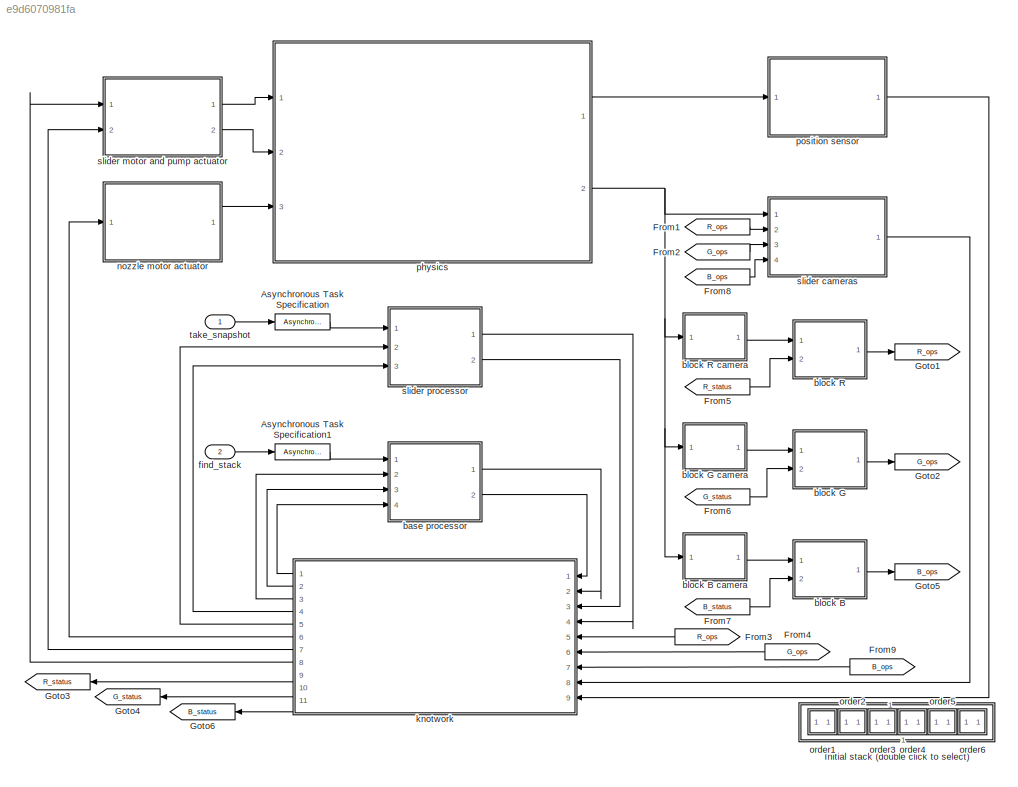
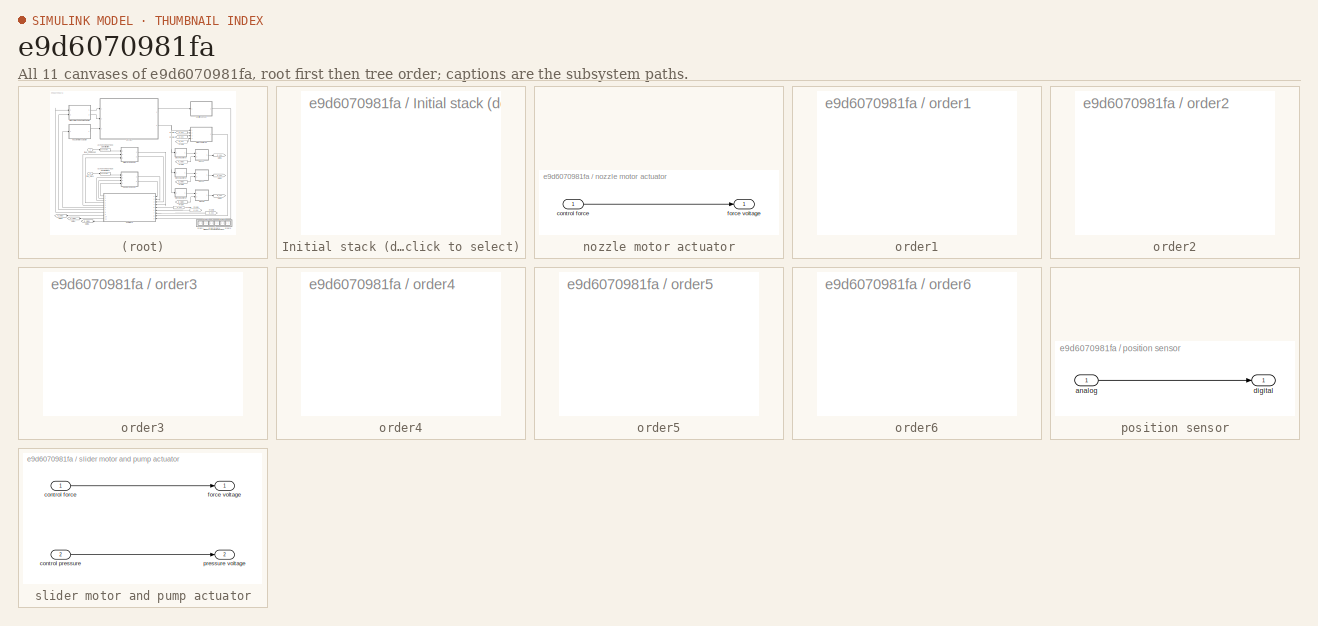
[diagram: thumbnail index - all 11 canvases of the model, root first then tree order]
MODEL slx_e9d6070981fa
KIND model
WORKSPACE source: MAT-file member
WORKSPACE ini_G_block_hpos = -0.4
BLOCK [AsynchronousTaskSpecification] Asynchronous Task Specification
  TaskPriority = 5
BLOCK [AsynchronousTaskSpecification] Asynchronous Task Specification1
BLOCK [From] From1
  GotoTag = R_ops
BLOCK [From] From2
  GotoTag = G_ops
BLOCK [From] From3
  GotoTag = R_ops
BLOCK [From] From4
  GotoTag = G_ops
BLOCK [From] From5
  GotoTag = R_status
BLOCK [From] From6
  GotoTag = G_status
BLOCK [From] From7
  GotoTag = B_status
BLOCK [From] From8
  GotoTag = B_ops
BLOCK [From] From9
  GotoTag = B_ops
BLOCK [Goto] Goto1
  GotoTag = R_ops
BLOCK [Goto] Goto2
  GotoTag = G_ops
BLOCK [Goto] Goto3
  GotoTag = R_status
BLOCK [Goto] Goto4
  GotoTag = G_status
BLOCK [Goto] Goto5
  GotoTag = B_ops
BLOCK [Goto] Goto6
  GotoTag = B_status
BLOCK [SubSystem] Initial stack (double click to select)
  FunctionWithSeparateData = off
  MaskHideContents = off
  MinAlgLoopOccurrences = off
  Opaque = off
  Ports = []
  PropExecContextOutsideSubsystem = off
  RTWSystemCode = Auto
  RequestExecContextInheritance = off
BLOCK [ModelReference] base processor
  CopyOfModelName = cps_base_processor_v2
  DefaultDataLogging = on
  ModelNameDialog = cps_base_processor_v2
  ModelReferenceVersion = 1.921
  ParameterArgumentNames = board_vpos,block_height
  ParameterArgumentValues = board_vpos, block_height
  Ports = [4, 2]
BLOCK [ModelReference] block B
  CopyOfModelName = cps_blocks_v2
  DefaultDataLogging = on
  ModelNameDialog = cps_blocks_v2
  ModelReferenceVersion = 1.769
  ParameterArgumentNames = block
  ParameterArgumentValues = blockB
  Ports = [2, 1]
BLOCK [ModelReference] block B camera
  CopyOfModelName = cps_blockB_camera_v2
  DefaultDataLogging = on
  ModelNameDialog = cps_blockB_camera_v2
  ModelReferenceVersion = 1.638
  ParameterArgumentNames = ini_G_block_vpos,ini_B_block_vpos,block_height
  ParameterArgumentValues = ini_G_block_vpos,ini_R_block_vpos,block_height
  Ports = [1, 1]
BLOCK [ModelReference] block G
  CopyOfModelName = cps_blocks_v2
  DefaultDataLogging = on
  ModelNameDialog = cps_blocks_v2
  ModelReferenceVersion = 1.769
  ParameterArgumentNames = block
  ParameterArgumentValues = blockG
  Ports = [2, 1]
BLOCK [ModelReference] block G camera
  CopyOfModelName = cps_blockG_camera_v2
  DefaultDataLogging = on
  ModelNameDialog = cps_blockG_camera_v2
  ModelReferenceVersion = 1.621
  ParameterArgumentNames = ini_G_block_vpos,ini_B_block_vpos,block_height
  ParameterArgumentValues = ini_G_block_vpos,ini_R_block_vpos,block_height
  Ports = [1, 1]
BLOCK [ModelReference] block R
  CopyOfModelName = cps_blocks_v2
  DefaultDataLogging = on
  ModelNameDialog = cps_blocks_v2
  ModelReferenceVersion = 1.769
  ParameterArgumentNames = block
  ParameterArgumentValues = blockR
  Ports = [2, 1]
BLOCK [ModelReference] block R camera
  CopyOfModelName = cps_blockR_camera_v2
  DefaultDataLogging = on
  ModelNameDialog = cps_blockR_camera_v2
  ModelReferenceVersion = 1.630
  ParameterArgumentNames = ini_G_block_vpos,ini_B_block_vpos,block_height
  ParameterArgumentValues = ini_G_block_vpos,ini_R_block_vpos,block_height
  Ports = [1, 1]
BLOCK [Inport] find_stack
  IconDisplay = Port number
  OutputFunctionCall = on
  Port = 2
BLOCK [ModelReference] knotwork
  CopyOfModelName = cps_network_v2
  DefaultDataLogging = on
  ModelNameDialog = cps_network_v2
  ModelReferenceVersion = 1.126
  Ports = [9, 11]
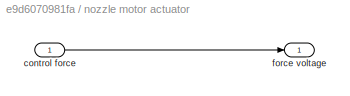
BLOCK [SubSystem] nozzle motor actuator
  FunctionWithSeparateData = off
  MaskHideContents = off
  MinAlgLoopOccurrences = off
  Opaque = off
  Ports = [1, 1]
  PropExecContextOutsideSubsystem = off
  RTWSystemCode = Auto
  RequestExecContextInheritance = off
BLOCK [Inport] nozzle motor actuator/control force
  IconDisplay = Port number
BLOCK [Outport] nozzle motor actuator/force voltage
  IconDisplay = Port number
BLOCK [SubSystem] order1
  FunctionWithSeparateData = off
  MaskHideContents = off
  MinAlgLoopOccurrences = off
  Opaque = off
  OpenFcn = temp = get_param(bdroot, 'modelworkspace');    \ntemp.evalin('ini_B_block_vpos = vpos_top;');   \ntemp.evalin('ini_G_block_vpos = vpos_middle;');\ntemp.evalin('ini_R_block_vpos = vpos_bottom;');\n                                               \ntemp.evalin(order_callback);                   \n                                               \nclear temp;
  Ports = []
  PropExecContextOutsideSubsystem = off
  RTWSystemCode = Auto
  RequestExecContextInheritance = off
BLOCK [SubSystem] order2
  FunctionWithSeparateData = off
  MaskHideContents = off
  MinAlgLoopOccurrences = off
  Opaque = off
  OpenFcn = temp = get_param(bdroot, 'modelworkspace');    \ntemp.evalin('ini_G_block_vpos = vpos_top;');   \ntemp.evalin('ini_B_block_vpos = vpos_middle;');\ntemp.evalin('ini_R_block_vpos = vpos_bottom;');\n                                               \ntemp.evalin(order_callback);                   \n                                               \nclear temp;
  Ports = []
  PropExecContextOutsideSubsystem = off
  RTWSystemCode = Auto
  RequestExecContextInheritance = off
BLOCK [SubSystem] order3
  FunctionWithSeparateData = off
  MaskHideContents = off
  MinAlgLoopOccurrences = off
  Opaque = off
  OpenFcn = temp = get_param(bdroot, 'modelworkspace');    \ntemp.evalin('ini_G_block_vpos = vpos_top;');   \ntemp.evalin('ini_R_block_vpos = vpos_middle;');\ntemp.evalin('ini_B_block_vpos = vpos_bottom;');\n                                               \ntemp.evalin(order_callback);                   \n                                               \nclear temp;
  Ports = []
  PropExecContextOutsideSubsystem = off
  RTWSystemCode = Auto
  RequestExecContextInheritance = off
BLOCK [SubSystem] order4
  FunctionWithSeparateData = off
  MaskHideContents = off
  MinAlgLoopOccurrences = off
  Opaque = off
  OpenFcn = temp = get_param(bdroot, 'modelworkspace');    \ntemp.evalin('ini_B_block_vpos = vpos_top;');   \ntemp.evalin('ini_R_block_vpos = vpos_middle;');\ntemp.evalin('ini_G_block_vpos = vpos_bottom;');\n                                               \ntemp.evalin(order_callback);                   \n                                               \nclear temp;
  Ports = []
  PropExecContextOutsideSubsystem = off
  RTWSystemCode = Auto
  RequestExecContextInheritance = off
BLOCK [SubSystem] order5
  FunctionWithSeparateData = off
  MaskHideContents = off
  MinAlgLoopOccurrences = off
  Opaque = off
  OpenFcn = temp = get_param(bdroot, 'modelworkspace');    \ntemp.evalin('ini_R_block_vpos = vpos_top;');   \ntemp.evalin('ini_B_block_vpos = vpos_middle;');\ntemp.evalin('ini_G_block_vpos = vpos_bottom;');\n                                               \ntemp.evalin(order_callback);                   \n                                               \nclear temp;
  Ports = []
  PropExecContextOutsideSubsystem = off
  RTWSystemCode = Auto
  RequestExecContextInheritance = off
BLOCK [SubSystem] order6
  FunctionWithSeparateData = off
  MaskHideContents = off
  MinAlgLoopOccurrences = off
  Opaque = off
  OpenFcn = temp = get_param(bdroot, 'modelworkspace');    \ntemp.evalin('ini_R_block_vpos = vpos_top;');   \ntemp.evalin('ini_G_block_vpos = vpos_middle;');\ntemp.evalin('ini_B_block_vpos = vpos_bottom;');\n                                               \ntemp.evalin(order_callback);                   \n                                               \nclear temp;
  Ports = []
  PropExecContextOutsideSubsystem = off
  RTWSystemCode = Auto
  RequestExecContextInheritance = off
BLOCK [ModelReference] physics
  CopyOfModelName = cps_physics_v2
  DefaultDataLogging = on
  ModelNameDialog = cps_physics_v2
  ModelReferenceVersion = 1.823
  ParameterArgumentNames = ini_G_block_vpos,ini_G_block_hpos,ini_R_block_vpos,ini_R_block_hpos,ini_B_block_vpos,ini_B_block_hpos,ini_nozzle_pos,board_vpos,block_height
  ParameterArgumentValues = ini_G_block_vpos, ini_G_block_hpos, ini_R_block_vpos, ini_R_block_hpos, ini_B_block_vpos, ini_B_block_hpos,ini_nozzle_pos, board_vpos, block_height
  Ports = [3, 2]
BLOCK [SubSystem] position sensor
  FunctionWithSeparateData = off
  MaskHideContents = off
  MinAlgLoopOccurrences = off
  Opaque = off
  Ports = [1, 1]
  PropExecContextOutsideSubsystem = off
  RTWSystemCode = Auto
  RequestExecContextInheritance = off
BLOCK [Inport] position sensor/analog
  IconDisplay = Port number
BLOCK [Outport] position sensor/digital
  IconDisplay = Port number
BLOCK [ModelReference] slider cameras
  CopyOfModelName = cps_cameras_v2
  DefaultDataLogging = on
  ModelNameDialog = cps_cameras_v2
  ModelReferenceVersion = 1.655
  ParameterArgumentNames = ini_G_block_vpos,ini_B_block_vpos,block_height
  ParameterArgumentValues = ini_G_block_vpos,ini_R_block_vpos,block_height
  Ports = [4, 1]
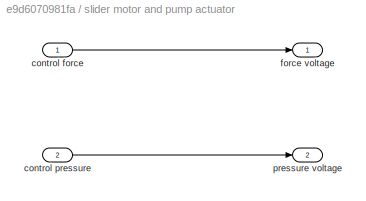
BLOCK [SubSystem] slider motor and pump actuator
  FunctionWithSeparateData = off
  MaskHideContents = off
  MinAlgLoopOccurrences = off
  Opaque = off
  Ports = [2, 2]
  PropExecContextOutsideSubsystem = off
  RTWSystemCode = Auto
  RequestExecContextInheritance = off
BLOCK [Inport] slider motor and pump actuator/control force
  IconDisplay = Port number
BLOCK [Inport] slider motor and pump actuator/control pressure
  IconDisplay = Port number
  Port = 2
BLOCK [Outport] slider motor and pump actuator/force voltage
  IconDisplay = Port number
BLOCK [Outport] slider motor and pump actuator/pressure voltage
  IconDisplay = Port number
  Port = 2
BLOCK [ModelReference] slider processor
  CopyOfModelName = cps_slider_processor_v2
  DefaultDataLogging = on
  ModelNameDialog = cps_slider_processor_v2
  ModelReferenceVersion = 1.718
  Ports = [3, 2]
BLOCK [Inport] take_snapshot
  IconDisplay = Port number
  OutputFunctionCall = on
LINE Asynchronous Task Specification1:1 -> base processor:1
LINE Asynchronous Task Specification:1 -> slider processor:1
LINE From1:1 -> slider cameras:2
LINE From2:1 -> slider cameras:3
LINE From3:1 -> knotwork:5
LINE From4:1 -> knotwork:6
LINE From5:1 -> block R:2
LINE From6:1 -> block G:2
LINE From7:1 -> block B:2
LINE From8:1 -> slider cameras:4
LINE From9:1 -> knotwork:7
LINE base processor:1 -> knotwork:2
LINE base processor:2 -> knotwork:1
LINE block B camera:1 -> block B:1
LINE block B:1 -> Goto5:1
LINE block G camera:1 -> block G:1
LINE block G:1 -> Goto2:1
LINE block R camera:1 -> block R:1
LINE block R:1 -> Goto1:1
LINE find_stack:1 -> Asynchronous Task Specification1:1
LINE knotwork:1 -> base processor:4
LINE knotwork:10 -> Goto4:1
LINE knotwork:11 -> Goto6:1
LINE knotwork:2 -> base processor:3
LINE knotwork:3 -> base processor:2
LINE knotwork:4 -> slider processor:3
LINE knotwork:5 -> slider processor:2
LINE knotwork:6 -> nozzle motor actuator:1
LINE knotwork:7 -> slider motor and pump actuator:2
LINE knotwork:8 -> slider motor and pump actuator:1
LINE knotwork:9 -> Goto3:1
LINE nozzle motor actuator/control force:1 -> nozzle motor actuator/force voltage:1
LINE nozzle motor actuator:1 -> physics:3
LINE physics:1 -> position sensor:1
NET physics:2 -> block B camera:1, block G camera:1, block R camera:1, slider cameras:1
LINE position sensor/analog:1 -> position sensor/digital:1
LINE position sensor:1 -> knotwork:9
LINE slider cameras:1 -> knotwork:8
LINE slider motor and pump actuator/control force:1 -> slider motor and pump actuator/force voltage:1
LINE slider motor and pump actuator/control pressure:1 -> slider motor and pump actuator/pressure voltage:1
LINE slider motor and pump actuator:1 -> physics:1
LINE slider motor and pump actuator:2 -> physics:2
LINE slider processor:1 -> knotwork:4
LINE slider processor:2 -> knotwork:3
LINE take_snapshot:1 -> Asynchronous Task Specification:1
note: NET lines group one-source signal fan-out (src -> all destinations, sorted); 1:1 wires keep LINE
